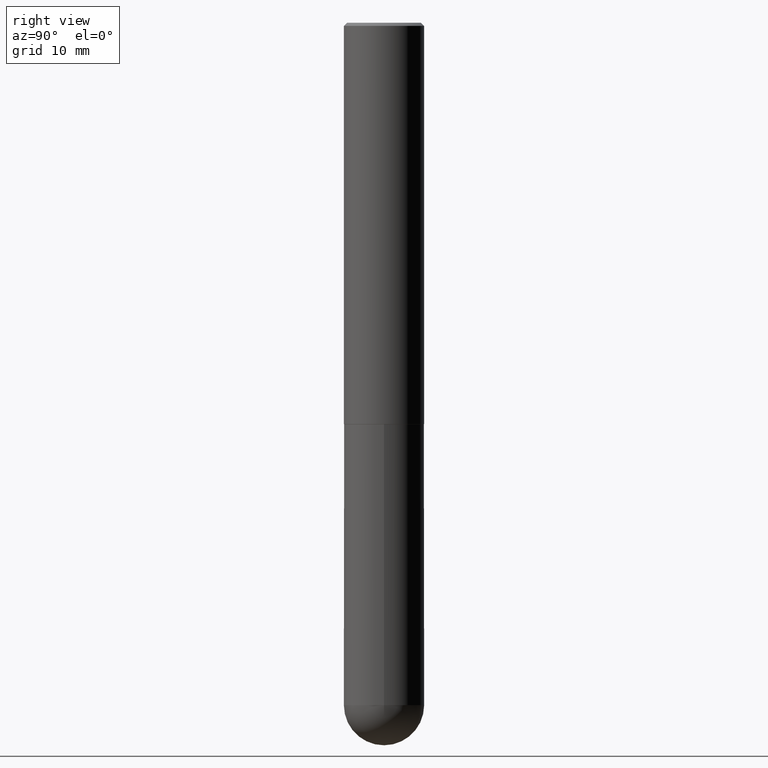
[diagram: clean part render]
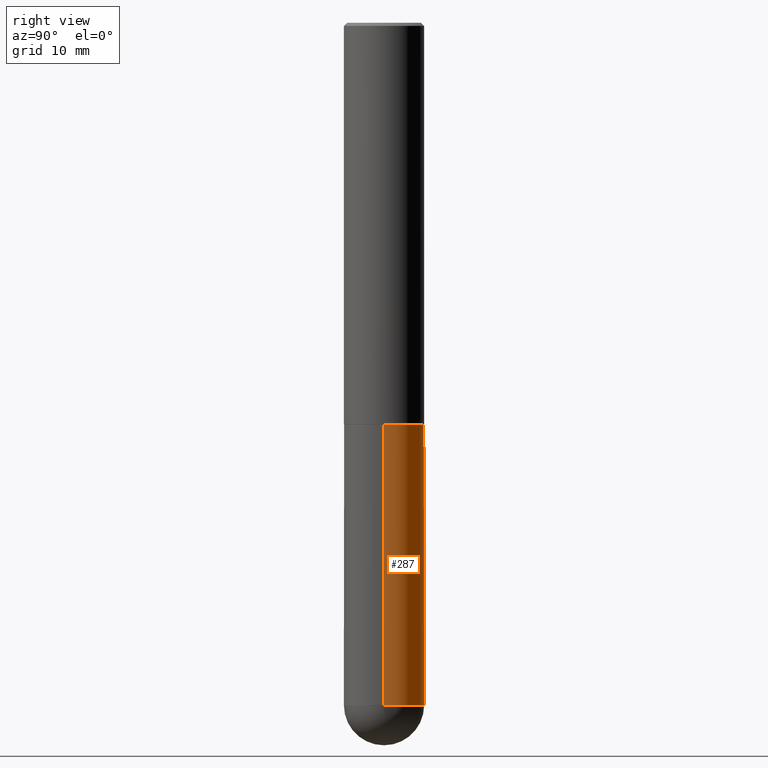
[diagram: same view with one face highlighted and labeled with its STEP entity id]
A machine part, right view. The second image highlights one B-rep face of the part: STEP entity #287.
In plain terms, the highlighted cylindrical surface (partial cylindrical patch) has radius 6.35 mm, axis along (-0, 0, 1).
Its self-contained STEP definition (entity closure, byte-faithful):
#19 = CARTESIAN_POINT ( 'NONE',  ( 0.2500000000000000000, -1.745740669421566678E-15, 1.219044193948983948E-29 ) ) ;
#21 = CARTESIAN_POINT ( 'NONE',  ( 1.745740669421669032E-15, 0.2499999999999849842, -4.250000000000001776 ) ) ;
#26 = CYLINDRICAL_SURFACE ( 'NONE', #67, 0.2500000000000000000 ) ;
#28 = VECTOR ( 'NONE', #279, 39.37007874015748143 ) ;
#33 = DIRECTION ( 'NONE',  ( -2.445468806185136597E-29, 3.491481338843145583E-15, 1.000000000000000000 ) ) ;
#38 = EDGE_CURVE ( 'NONE', #278, #271, #251, .T. ) ;
#54 = DIRECTION ( 'NONE',  ( 1.000000000000000000, -6.982962677686270655E-15, 0.000000000000000000 ) ) ;
#63 = DIRECTION ( 'NONE',  ( 1.000000000000000000, -6.982962677686266711E-15, 0.000000000000000000 ) ) ;
#67 = AXIS2_PLACEMENT_3D ( 'NONE', #148, #283, #119 ) ;
#73 = ORIENTED_EDGE ( 'NONE', *, *, #340, .T. ) ;
#74 = VERTEX_POINT ( 'NONE', #21 ) ;
#85 = CARTESIAN_POINT ( 'NONE',  ( -0.2500000000000000000, -1.000739267919536563E-14, -2.500000000000000000 ) ) ;
#88 = EDGE_CURVE ( 'NONE', #74, #278, #186, .T. ) ;
#119 = DIRECTION ( 'NONE',  ( 1.000000000000000000, -6.982962677686266711E-15, 4.876176775795935793E-29 ) ) ;
#121 = CARTESIAN_POINT ( 'NONE',  ( 6.113672015462842613E-29, -8.728703347107864943E-15, -2.500000000000000000 ) ) ;
#129 = ORIENTED_EDGE ( 'NONE', *, *, #161, .F. ) ;
#140 = VERTEX_POINT ( 'NONE', #351 ) ;
#148 = CARTESIAN_POINT ( 'NONE',  ( 0.000000000000000000, 0.000000000000000000, 0.000000000000000000 ) ) ;
#149 = EDGE_CURVE ( 'NONE', #302, #271, #401, .T. ) ;
#161 = EDGE_CURVE ( 'NONE', #140, #302, #189, .T. ) ;
#186 = CIRCLE ( 'NONE', #193, 0.2500000000000000000 ) ;
#189 = LINE ( 'NONE', #19, #28 ) ;
#191 = DIRECTION ( 'NONE',  ( 1.000000000000000000, -6.982962677686270655E-15, 0.000000000000000000 ) ) ;
#193 = AXIS2_PLACEMENT_3D ( 'NONE', #285, #372, #54 ) ;
#194 = AXIS2_PLACEMENT_3D ( 'NONE', #121, #253, #63 ) ;
#207 = ORIENTED_EDGE ( 'NONE', *, *, #149, .F. ) ;
#218 = FACE_OUTER_BOUND ( 'NONE', #326, .T. ) ;
#221 = DIRECTION ( 'NONE',  ( -2.445468806185136877E-29, 3.491481338843145188E-15, 1.000000000000000000 ) ) ;
#222 = CARTESIAN_POINT ( 'NONE',  ( 0.2500000000000000000, -1.047444401652943162E-14, -2.500000000000000000 ) ) ;
#224 = CARTESIAN_POINT ( 'NONE',  ( -0.2500000000000000000, -1.000739267919536879E-14, -4.250000000000000000 ) ) ;
#251 = LINE ( 'NONE', #288, #383 ) ;
#253 = DIRECTION ( 'NONE',  ( -2.445468806185136597E-29, 3.491481338843145583E-15, 1.000000000000000000 ) ) ;
#271 = VERTEX_POINT ( 'NONE', #85 ) ;
#278 = VERTEX_POINT ( 'NONE', #224 ) ;
#279 = DIRECTION ( 'NONE',  ( -2.445468806185136877E-29, 3.491481338843145188E-15, 1.000000000000000000 ) ) ;
#283 = DIRECTION ( 'NONE',  ( -2.445468806185136597E-29, 3.491481338843145583E-15, 1.000000000000000000 ) ) ;
#285 = CARTESIAN_POINT ( 'NONE',  ( 1.039324242628683054E-28, -1.483879569008337040E-14, -4.250000000000000000 ) ) ;
#287 = ADVANCED_FACE ( 'NONE', ( #218 ), #26, .T. ) ;
#288 = CARTESIAN_POINT ( 'NONE',  ( -0.2500000000000000000, 1.776356839400250465E-15, -1.229733772563726445E-29 ) ) ;
#293 = CIRCLE ( 'NONE', #308, 0.2500000000000000000 ) ;
#302 = VERTEX_POINT ( 'NONE', #222 ) ;
#307 = ORIENTED_EDGE ( 'NONE', *, *, #38, .T. ) ;
#308 = AXIS2_PLACEMENT_3D ( 'NONE', #322, #33, #191 ) ;
#322 = CARTESIAN_POINT ( 'NONE',  ( 1.039324242628683054E-28, -1.483879569008337040E-14, -4.250000000000000000 ) ) ;
#326 = EDGE_LOOP ( 'NONE', ( #369, #307, #207, #129, #73 ) ) ;
#340 = EDGE_CURVE ( 'NONE', #140, #74, #293, .T. ) ;
#351 = CARTESIAN_POINT ( 'NONE',  ( 0.2500000000000000000, -1.352949018801718751E-14, -4.250000000000000000 ) ) ;
#369 = ORIENTED_EDGE ( 'NONE', *, *, #88, .T. ) ;
#372 = DIRECTION ( 'NONE',  ( -2.445468806185136597E-29, 3.491481338843145583E-15, 1.000000000000000000 ) ) ;
#383 = VECTOR ( 'NONE', #221, 39.37007874015748143 ) ;
#401 = CIRCLE ( 'NONE', #194, 0.2500000000000000000 ) ;